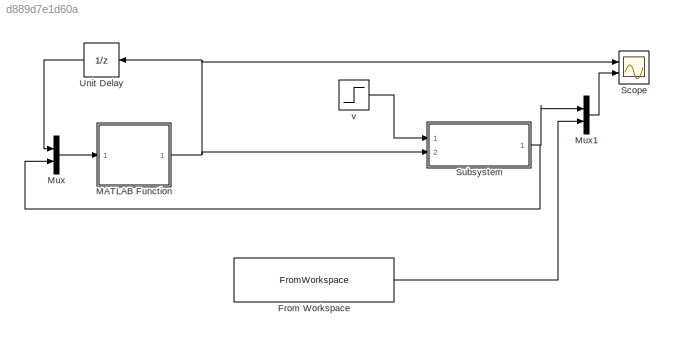
MODEL slx_d889d7e1d60a
KIND model
CONFIG AbsTol = auto
CONFIG EnableMultiTasking = off
CONFIG FixedStep = auto
CONFIG MaxStep = auto
CONFIG MinStep = auto
CONFIG RelTol = 1e-3
CONFIG SampleTimeConstraint = Unconstrained
CONFIG SolverName = VariableStepAuto
CONFIG StartTime = 0.0
CONFIG StopTime = 2
BLOCK [FromWorkspace] From Workspace
  VariableName = [(0:Ts:Tsim-Ts)' R(1:N)]
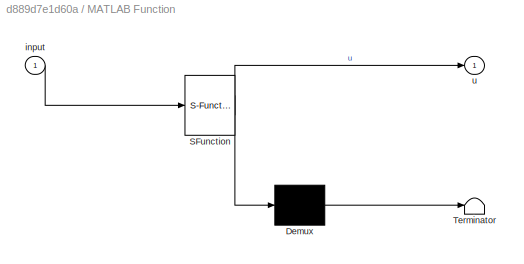
BLOCK [SubSystem] MATLAB Function
  ErrorFcn = Stateflow.Translate.translate
  PermitHierarchicalResolution = ExplicitOnly
  Ports = [1, 1]
  RequestExecContextInheritance = off
  SFBlockType = MATLAB Function
  TreatAsAtomicUnit = on
BLOCK [Demux] MATLAB Function/ Demux 
  Outputs = 1
  Ports = [1, 1]
BLOCK [S-Function] MATLAB Function/ SFunction 
  EnableBusSupport = on
  FunctionName = sf_sfun
  Parameters = Orizont,P,PSI,Q,R,lambda,nA,nB
  PortCounts = [1 2]
  Ports = [1, 2]
  SFcnIsStateOwnerBlock = off
  SFunctionDeploymentMode = off
  Tag = Stateflow S-Function 2
BLOCK [Terminator] MATLAB Function/ Terminator 
BLOCK [Inport] MATLAB Function/input
BLOCK [Outport] MATLAB Function/u
BLOCK [Mux] Mux
  DisplayOption = bar
  Inputs = 2
  Ports = [2, 1]
BLOCK [Mux] Mux1
  DisplayOption = bar
  Inputs = 2
  Ports = [2, 1]
BLOCK [Scope] Scope
  Floating = off
  NumInputPorts = 2
  Ports = [2]
  ScopeSpecificationString = Simulink.scopes.TimeScopeBlockCfg('CurrentConfiguration', extmgr.ConfigurationSet(extmgr.Configuration('Core','General UI',true),extmgr.Configuration('Core','Source UI',true),extmgr.Configuration('Sources','WiredSimulink',true),extmgr.Configuration('Visuals','Time Domain',true,'SerializedDisplays',{struct('MinYLimReal','-11383674413590547172279946550159158621132183487339146654261328972644554820231...<+2119ch>
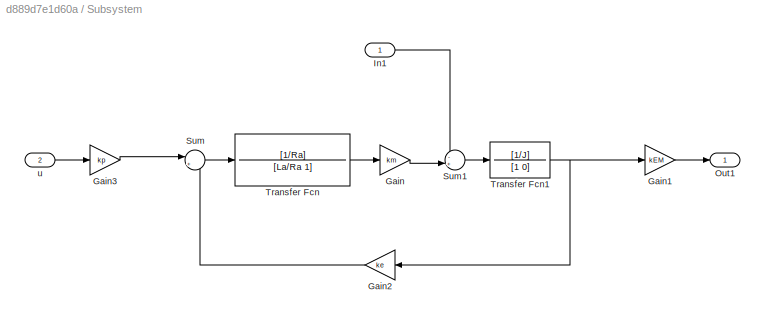
BLOCK [SubSystem] Subsystem
  Ports = [2, 1]
  RequestExecContextInheritance = off
BLOCK [Gain] Subsystem/Gain
  Gain = km
BLOCK [Gain] Subsystem/Gain1
  Gain = kEM
BLOCK [Gain] Subsystem/Gain2
  Gain = ke
  NameLocation = top
BLOCK [Gain] Subsystem/Gain3
  Gain = kp
BLOCK [Inport] Subsystem/In1
BLOCK [Outport] Subsystem/Out1
BLOCK [Sum] Subsystem/Sum
  Inputs = |+-
  Ports = [2, 1]
BLOCK [Sum] Subsystem/Sum1
  Inputs = -+|
  Ports = [2, 1]
BLOCK [TransferFcn] Subsystem/Transfer Fcn
  Denominator = [La/Ra 1]
  Numerator = [1/Ra]
BLOCK [TransferFcn] Subsystem/Transfer Fcn1
  Denominator = [1 0]
  Numerator = [1/J]
BLOCK [Inport] Subsystem/u
  IconDisplay = Signal name
  Port = 2
BLOCK [UnitDelay] Unit Delay
  HasFrameUpgradeWarning = on
  NameLocation = top
  SampleTime = -1
BLOCK [Step] v
  After = -12
  SampleTime = 0
  Time = 0.6
LINE From Workspace:1 -> Mux1:2
NET MATLAB Function:1 -> Scope:1, Subsystem:2, Unit Delay:1
LINE Mux1:1 -> Scope:2
LINE Mux:1 -> MATLAB Function:1
LINE Subsystem/Gain1:1 -> Subsystem/Out1:1
LINE Subsystem/Gain2:1 -> Subsystem/Sum:2
LINE Subsystem/Gain3:1 -> Subsystem/Sum:1
LINE Subsystem/Gain:1 -> Subsystem/Sum1:2
LINE Subsystem/In1:1 -> Subsystem/Sum1:1
LINE Subsystem/Sum1:1 -> Subsystem/Transfer Fcn1:1
LINE Subsystem/Sum:1 -> Subsystem/Transfer Fcn:1
NET Subsystem/Transfer Fcn1:1 -> Subsystem/Gain1:1, Subsystem/Gain2:1
LINE Subsystem/Transfer Fcn:1 -> Subsystem/Gain:1
LINE Subsystem/u:1 -> Subsystem/Gain3:1
NET Subsystem:1 -> Mux1:1, Mux:2
LINE Unit Delay:1 -> Mux:1
LINE v:1 -> Subsystem:1
note: NET lines group one-source signal fan-out (src -> all destinations, sorted); 1:1 wires keep LINE
CHART MATLAB Function states=1 transitions=1
  STATE_LABEL 'eML_blk_kernel()'
  STATE_LABEL "SCRIPT:\n% ------------------myMPC.m----------------------- %\nfunction u = myMPC(input, R, P, PSI, Q, nA, nB, lambda, Orizont)\n% to clear persistent vars in Fcn, call >>clear 'FcnName' in prompt\n% clear myMPC\npersistent yPast uPast k\nif isempty(yPast) % initializari variabile persistente la prima rulare\nyPast = zeros(2,1);\nuPast = zeros(1,1);\nk = 0;\nend\n% actualizare uPast\nfor i = length(uPast):-1:...<+432ch>"
CHART  states=0 transitions=0
